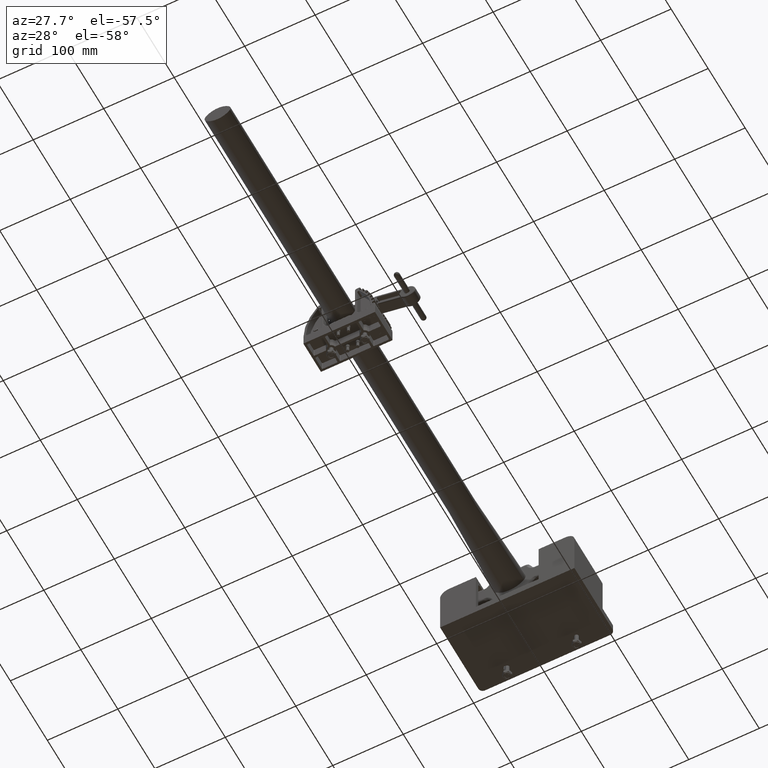
[diagram: clean part render]
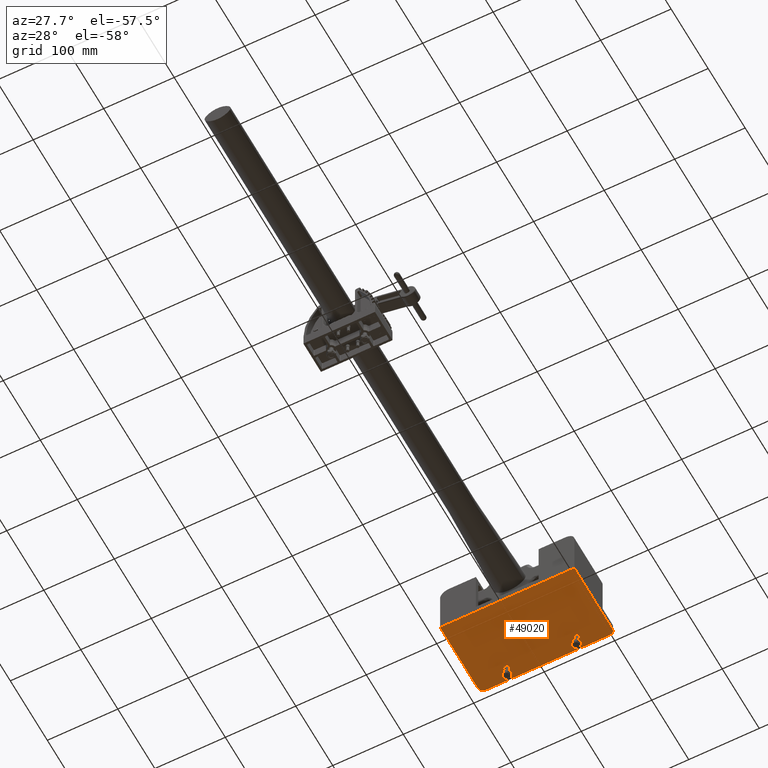
[diagram: same view with one face highlighted and labeled with its STEP entity id]
A machine part, auxiliary view. The second image highlights one B-rep face of the part: STEP entity #49020.
In plain terms, the highlighted planar face has unit normal (0, 0, 1).
Its self-contained STEP definition (entity closure, byte-faithful):
#1253 = VERTEX_POINT ( 'NONE', #49744 ) ;
#1254 = VERTEX_POINT ( 'NONE', #49745 ) ;
#1258 = VERTEX_POINT ( 'NONE', #49749 ) ;
#1281 = VERTEX_POINT ( 'NONE', #49772 ) ;
#1294 = VERTEX_POINT ( 'NONE', #49785 ) ;
#1300 = VERTEX_POINT ( 'NONE', #49791 ) ;
#1306 = VERTEX_POINT ( 'NONE', #49797 ) ;
#1330 = VERTEX_POINT ( 'NONE', #49821 ) ;
#1336 = VERTEX_POINT ( 'NONE', #49827 ) ;
#1387 = VERTEX_POINT ( 'NONE', #49878 ) ;
#2819 = CARTESIAN_POINT ( 'NONE',  ( -1.968750000000000400, 3.625000000000000400, 0.0000000000000000000 ) ) ;
#2821 = DIRECTION ( 'NONE',  ( -0.0000000000000000000, -0.0000000000000000000, 1.000000000000000000 ) ) ;
#2822 = DIRECTION ( 'NONE',  ( 1.000000000000000000, 0.0000000000000000000, 0.0000000000000000000 ) ) ;
#2833 = CARTESIAN_POINT ( 'NONE',  ( 1.968749999999999300, 3.625000000000000900, 0.0000000000000000000 ) ) ;
#2862 = DIRECTION ( 'NONE',  ( -0.0000000000000000000, -0.0000000000000000000, 1.000000000000000000 ) ) ;
#2863 = DIRECTION ( 'NONE',  ( 1.000000000000000000, 0.0000000000000000000, 0.0000000000000000000 ) ) ;
#12843 = AXIS2_PLACEMENT_3D ( 'NONE', #27072, #27080, #27081 ) ;
#16999 = CARTESIAN_POINT ( 'NONE',  ( -3.750000000000000000, 4.299999999999999800, 0.0000000000000000000 ) ) ;
#17002 = DIRECTION ( 'NONE',  ( -0.0000000000000000000, -1.000000000000000000, -0.0000000000000000000 ) ) ;
#17003 = CARTESIAN_POINT ( 'NONE',  ( -3.750000000000000000, 4.299999999999999800, 0.0000000000000000000 ) ) ;
#17008 = DIRECTION ( 'NONE',  ( -1.000000000000000000, -0.0000000000000000000, -0.0000000000000000000 ) ) ;
#17014 = CARTESIAN_POINT ( 'NONE',  ( 3.500000000000000400, 4.049999999999999800, 0.0000000000000000000 ) ) ;
#17021 = DIRECTION ( 'NONE',  ( -0.0000000000000000000, -0.0000000000000000000, -1.000000000000000000 ) ) ;
#17022 = DIRECTION ( 'NONE',  ( 1.000000000000000000, 0.0000000000000000000, 0.0000000000000000000 ) ) ;
#17037 = CARTESIAN_POINT ( 'NONE',  ( 3.750000000000000000, 4.299999999999999800, 0.0000000000000000000 ) ) ;
#17038 = DIRECTION ( 'NONE',  ( -0.0000000000000000000, -1.000000000000000000, -0.0000000000000000000 ) ) ;
#17041 = CARTESIAN_POINT ( 'NONE',  ( -3.750000000000000000, 0.0000000000000000000, 0.0000000000000000000 ) ) ;
#17042 = DIRECTION ( 'NONE',  ( -1.000000000000000000, -0.0000000000000000000, -0.0000000000000000000 ) ) ;
#17043 = CARTESIAN_POINT ( 'NONE',  ( -1.968750000000000400, 3.625000000000000400, 0.0000000000000000000 ) ) ;
#17046 = CARTESIAN_POINT ( 'NONE',  ( -3.500000000000000400, 4.049999999999999800, 0.0000000000000000000 ) ) ;
#17047 = CARTESIAN_POINT ( 'NONE',  ( 1.968749999999999300, 3.625000000000000900, 0.0000000000000000000 ) ) ;
#17049 = DIRECTION ( 'NONE',  ( -0.0000000000000000000, -0.0000000000000000000, -1.000000000000000000 ) ) ;
#17050 = DIRECTION ( 'NONE',  ( 1.000000000000000000, 0.0000000000000000000, 0.0000000000000000000 ) ) ;
#17053 = DIRECTION ( 'NONE',  ( -0.0000000000000000000, -0.0000000000000000000, 1.000000000000000000 ) ) ;
#17055 = DIRECTION ( 'NONE',  ( 1.000000000000000000, 0.0000000000000000000, 0.0000000000000000000 ) ) ;
#17057 = DIRECTION ( 'NONE',  ( -0.0000000000000000000, -0.0000000000000000000, 1.000000000000000000 ) ) ;
#17059 = DIRECTION ( 'NONE',  ( 1.000000000000000000, 0.0000000000000000000, 0.0000000000000000000 ) ) ;
#26038 = CIRCLE ( 'NONE', #39075, 0.1329999999999999200 ) ;
#26048 = CIRCLE ( 'NONE', #39072, 0.1329999999999999200 ) ;
#26148 = LINE ( 'NONE', #16999, #26177 ) ;
#26170 = LINE ( 'NONE', #17003, #26183 ) ;
#26177 = VECTOR ( 'NONE', #17002, 39.37007874015748100 ) ;
#26183 = VECTOR ( 'NONE', #17008, 39.37007874015748100 ) ;
#26196 = CIRCLE ( 'NONE', #39081, 0.2499999999999998100 ) ;
#26203 = LINE ( 'NONE', #17037, #26204 ) ;
#26204 = VECTOR ( 'NONE', #17038, 39.37007874015748100 ) ;
#26207 = LINE ( 'NONE', #17041, #26208 ) ;
#26208 = VECTOR ( 'NONE', #17042, 39.37007874015748100 ) ;
#26212 = CIRCLE ( 'NONE', #39084, 0.2499999999999998100 ) ;
#26214 = CIRCLE ( 'NONE', #39086, 0.1329999999999999200 ) ;
#26216 = CIRCLE ( 'NONE', #39089, 0.1329999999999999200 ) ;
#27072 = CARTESIAN_POINT ( 'NONE',  ( -3.750000000000000000, 4.299999999999999800, 0.0000000000000000000 ) ) ;
#27079 = PLANE ( 'NONE',  #12843 ) ;
#27080 = DIRECTION ( 'NONE',  ( 0.0000000000000000000, 0.0000000000000000000, 1.000000000000000000 ) ) ;
#27081 = DIRECTION ( 'NONE',  ( 1.000000000000000000, 0.0000000000000000000, -0.0000000000000000000 ) ) ;
#31102 = EDGE_LOOP ( 'NONE', ( #38491, #38492 ) ) ;
#31251 = EDGE_LOOP ( 'NONE', ( #38493, #38494, #38495, #38496, #38497, #38498 ) ) ;
#38489 = ORIENTED_EDGE ( 'NONE', *, *, #42891, .T. ) ;
#38490 = ORIENTED_EDGE ( 'NONE', *, *, #42602, .T. ) ;
#38491 = ORIENTED_EDGE ( 'NONE', *, *, #42894, .T. ) ;
#38492 = ORIENTED_EDGE ( 'NONE', *, *, #42619, .T. ) ;
#38493 = ORIENTED_EDGE ( 'NONE', *, *, #42841, .F. ) ;
#38494 = ORIENTED_EDGE ( 'NONE', *, *, #42889, .T. ) ;
#38495 = ORIENTED_EDGE ( 'NONE', *, *, #42848, .F. ) ;
#38496 = ORIENTED_EDGE ( 'NONE', *, *, #42862, .T. ) ;
#38497 = ORIENTED_EDGE ( 'NONE', *, *, #42879, .T. ) ;
#38498 = ORIENTED_EDGE ( 'NONE', *, *, #42884, .T. ) ;
#39072 = AXIS2_PLACEMENT_3D ( 'NONE', #2833, #2862, #2863 ) ;
#39075 = AXIS2_PLACEMENT_3D ( 'NONE', #2819, #2821, #2822 ) ;
#39081 = AXIS2_PLACEMENT_3D ( 'NONE', #17014, #17021, #17022 ) ;
#39084 = AXIS2_PLACEMENT_3D ( 'NONE', #17046, #17049, #17050 ) ;
#39086 = AXIS2_PLACEMENT_3D ( 'NONE', #17043, #17053, #17055 ) ;
#39089 = AXIS2_PLACEMENT_3D ( 'NONE', #17047, #17057, #17059 ) ;
#40992 = FACE_BOUND ( 'NONE', #49553, .T. ) ;
#40998 = FACE_BOUND ( 'NONE', #31102, .T. ) ;
#41000 = FACE_OUTER_BOUND ( 'NONE', #31251, .T. ) ;
#42602 = EDGE_CURVE ( 'NONE', #1294, #1330, #26038, .T. ) ;
#42619 = EDGE_CURVE ( 'NONE', #1258, #1306, #26048, .T. ) ;
#42841 = EDGE_CURVE ( 'NONE', #1336, #1300, #26148, .T. ) ;
#42848 = EDGE_CURVE ( 'NONE', #1254, #1281, #26170, .T. ) ;
#42862 = EDGE_CURVE ( 'NONE', #1254, #1253, #26196, .T. ) ;
#42879 = EDGE_CURVE ( 'NONE', #1253, #1387, #26203, .T. ) ;
#42884 = EDGE_CURVE ( 'NONE', #1387, #1300, #26207, .T. ) ;
#42889 = EDGE_CURVE ( 'NONE', #1336, #1281, #26212, .T. ) ;
#42891 = EDGE_CURVE ( 'NONE', #1330, #1294, #26214, .T. ) ;
#42894 = EDGE_CURVE ( 'NONE', #1306, #1258, #26216, .T. ) ;
#49020 = ADVANCED_FACE ( 'NONE', ( #40992, #40998, #41000 ), #27079, .F. ) ;
#49553 = EDGE_LOOP ( 'NONE', ( #38489, #38490 ) ) ;
#49744 = CARTESIAN_POINT ( 'NONE',  ( 3.750000000000000000, 4.049999999999999800, 0.0000000000000000000 ) ) ;
#49745 = CARTESIAN_POINT ( 'NONE',  ( 3.500000000000000400, 4.299999999999999800, 0.0000000000000000000 ) ) ;
#49749 = CARTESIAN_POINT ( 'NONE',  ( 1.835749999999999300, 3.625000000000000900, 0.0000000000000000000 ) ) ;
#49772 = CARTESIAN_POINT ( 'NONE',  ( -3.500000000000000400, 4.299999999999999800, 0.0000000000000000000 ) ) ;
#49785 = CARTESIAN_POINT ( 'NONE',  ( -2.101750000000000500, 3.625000000000000400, 0.0000000000000000000 ) ) ;
#49791 = CARTESIAN_POINT ( 'NONE',  ( -3.750000000000000000, 0.0000000000000000000, 0.0000000000000000000 ) ) ;
#49797 = CARTESIAN_POINT ( 'NONE',  ( 2.101749999999999100, 3.625000000000000900, 0.0000000000000000000 ) ) ;
#49821 = CARTESIAN_POINT ( 'NONE',  ( -1.835750000000000400, 3.625000000000000400, 0.0000000000000000000 ) ) ;
#49827 = CARTESIAN_POINT ( 'NONE',  ( -3.750000000000000000, 4.049999999999999800, 0.0000000000000000000 ) ) ;
#49878 = CARTESIAN_POINT ( 'NONE',  ( 3.750000000000000000, 0.0000000000000000000, 0.0000000000000000000 ) ) ;